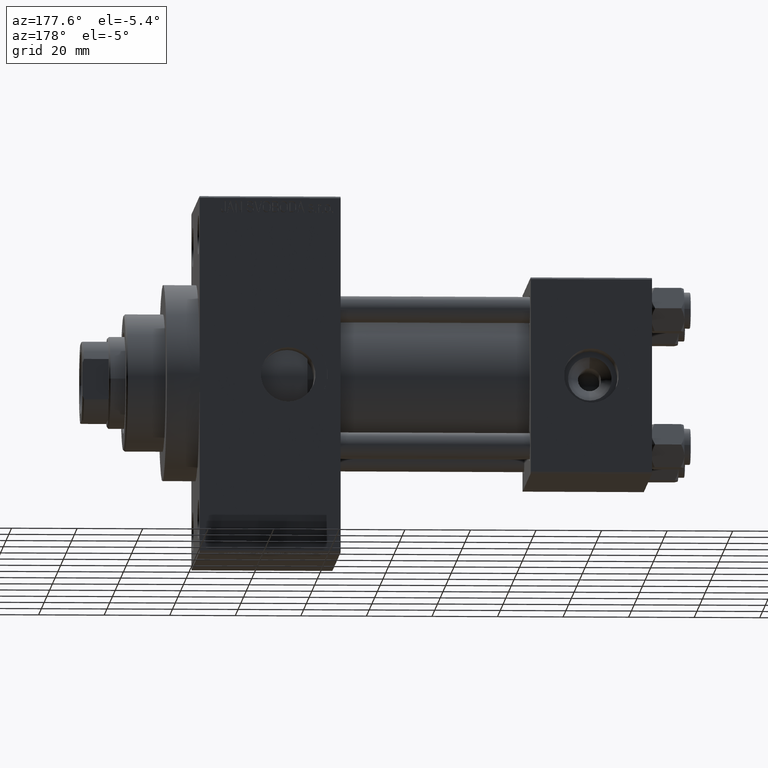
[diagram: clean part render]
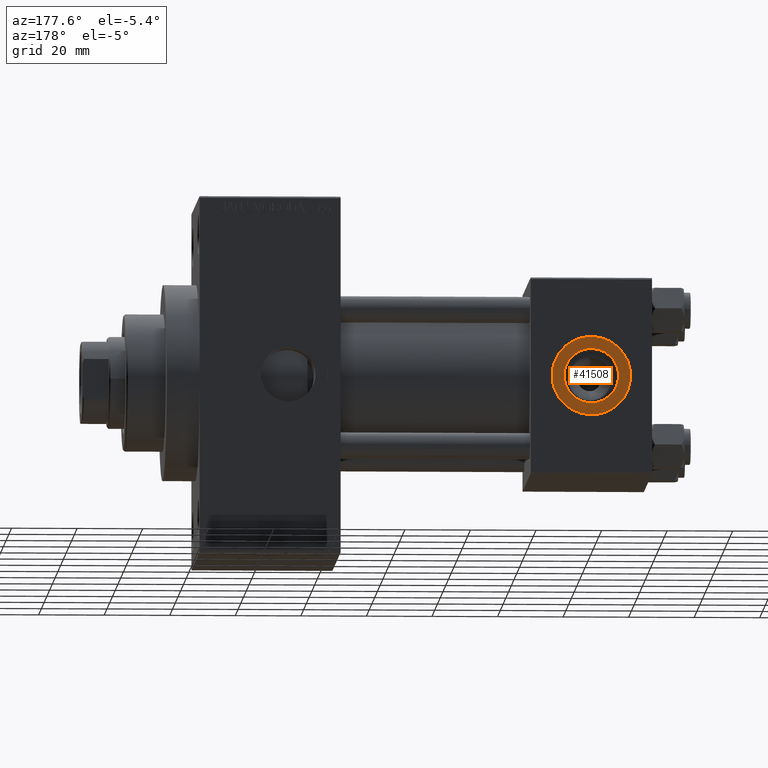
[diagram: same view with one face highlighted and labeled with its STEP entity id]
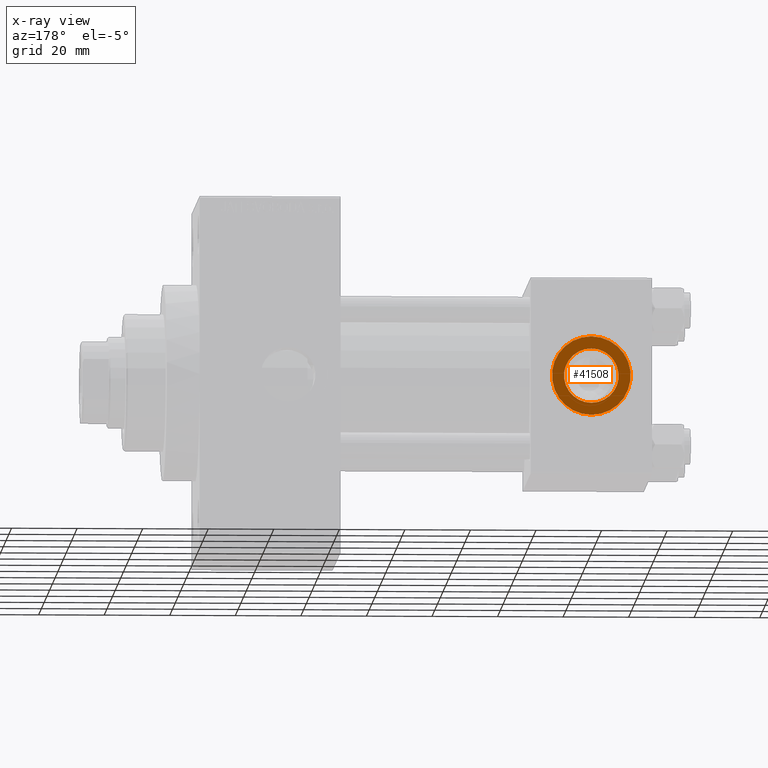
[diagram: x-ray of the same camera — body ghosted, the highlighted face saturated]
A machine part, auxiliary view. The second image highlights one B-rep face of the part: STEP entity #41508.
The next image is the same camera in x-ray: the body ghosted, the highlighted face saturated — about 0% of this face is hidden behind the body in this view.
In plain terms, the highlighted planar face has unit normal (0, 1, 0).
Its self-contained STEP definition (entity closure, byte-faithful):
#1576 = CARTESIAN_POINT ( 'NONE',  ( 18.50000000000000000, 29.79999999999999361, 0.000000000000000000 ) ) ;
#3066 = VERTEX_POINT ( 'NONE', #9182 ) ;
#4373 = EDGE_CURVE ( 'NONE', #44406, #44974, #23495, .T. ) ;
#6635 = CARTESIAN_POINT ( 'NONE',  ( 18.50000000000000000, 29.79999999999999361, -12.00000000000000178 ) ) ;
#7847 = ORIENTED_EDGE ( 'NONE', *, *, #41036, .T. ) ;
#8836 = VERTEX_POINT ( 'NONE', #10422 ) ;
#9182 = CARTESIAN_POINT ( 'NONE',  ( 18.50000000000000000, 29.79999999999999361, 8.330000000000001847 ) ) ;
#9595 = FACE_BOUND ( 'NONE', #23758, .T. ) ;
#9690 = ORIENTED_EDGE ( 'NONE', *, *, #23895, .F. ) ;
#10422 = CARTESIAN_POINT ( 'NONE',  ( 18.50000000000000000, 29.79999999999999361, -8.330000000000001847 ) ) ;
#10784 = DIRECTION ( 'NONE',  ( 0.000000000000000000, 0.000000000000000000, 1.000000000000000000 ) ) ;
#12491 = DIRECTION ( 'NONE',  ( 0.000000000000000000, 0.000000000000000000, 1.000000000000000000 ) ) ;
#13545 = DIRECTION ( 'NONE',  ( 0.000000000000000000, 0.000000000000000000, 1.000000000000000000 ) ) ;
#13785 = DIRECTION ( 'NONE',  ( 0.000000000000000000, 1.000000000000000000, 0.000000000000000000 ) ) ;
#14917 = CIRCLE ( 'NONE', #46216, 12.00000000000000178 ) ;
#16474 = CIRCLE ( 'NONE', #43191, 8.330000000000001847 ) ;
#18883 = CARTESIAN_POINT ( 'NONE',  ( 18.50000000000000000, 29.79999999999999361, 12.00000000000000178 ) ) ;
#22829 = FACE_OUTER_BOUND ( 'NONE', #26129, .T. ) ;
#23264 = DIRECTION ( 'NONE',  ( 0.000000000000000000, 1.000000000000000000, 0.000000000000000000 ) ) ;
#23495 = CIRCLE ( 'NONE', #31884, 12.00000000000000178 ) ;
#23664 = AXIS2_PLACEMENT_3D ( 'NONE', #1576, #30519, #32751 ) ;
#23758 = EDGE_LOOP ( 'NONE', ( #24008, #9690 ) ) ;
#23895 = EDGE_CURVE ( 'NONE', #8836, #3066, #32059, .T. ) ;
#24008 = ORIENTED_EDGE ( 'NONE', *, *, #42265, .F. ) ;
#26129 = EDGE_LOOP ( 'NONE', ( #7847, #43725 ) ) ;
#30519 = DIRECTION ( 'NONE',  ( 0.000000000000000000, 1.000000000000000000, 0.000000000000000000 ) ) ;
#31147 = CARTESIAN_POINT ( 'NONE',  ( 18.50000000000000000, 29.79999999999999361, 0.000000000000000000 ) ) ;
#31884 = AXIS2_PLACEMENT_3D ( 'NONE', #39946, #43975, #10784 ) ;
#32059 = CIRCLE ( 'NONE', #23664, 8.330000000000001847 ) ;
#32751 = DIRECTION ( 'NONE',  ( 0.000000000000000000, 0.000000000000000000, 1.000000000000000000 ) ) ;
#33588 = DIRECTION ( 'NONE',  ( 0.000000000000000000, -0.000000000000000000, 1.000000000000000000 ) ) ;
#36009 = CARTESIAN_POINT ( 'NONE',  ( 18.50000000000000000, 29.79999999999999361, 0.000000000000000000 ) ) ;
#37409 = PLANE ( 'NONE',  #46251 ) ;
#39946 = CARTESIAN_POINT ( 'NONE',  ( 18.50000000000000000, 29.79999999999999361, 0.000000000000000000 ) ) ;
#41036 = EDGE_CURVE ( 'NONE', #44974, #44406, #14917, .T. ) ;
#41221 = DIRECTION ( 'NONE',  ( 0.000000000000000000, 1.000000000000000000, 0.000000000000000000 ) ) ;
#41508 = ADVANCED_FACE ( 'NONE', ( #9595, #22829 ), #37409, .T. ) ;
#42265 = EDGE_CURVE ( 'NONE', #3066, #8836, #16474, .T. ) ;
#43191 = AXIS2_PLACEMENT_3D ( 'NONE', #36009, #13785, #13545 ) ;
#43725 = ORIENTED_EDGE ( 'NONE', *, *, #4373, .T. ) ;
#43975 = DIRECTION ( 'NONE',  ( 0.000000000000000000, 1.000000000000000000, 0.000000000000000000 ) ) ;
#44406 = VERTEX_POINT ( 'NONE', #6635 ) ;
#44786 = CARTESIAN_POINT ( 'NONE',  ( 18.50000000000000000, 29.79999999999999361, 0.000000000000000000 ) ) ;
#44974 = VERTEX_POINT ( 'NONE', #18883 ) ;
#46216 = AXIS2_PLACEMENT_3D ( 'NONE', #31147, #23264, #12491 ) ;
#46251 = AXIS2_PLACEMENT_3D ( 'NONE', #44786, #41221, #33588 ) ;